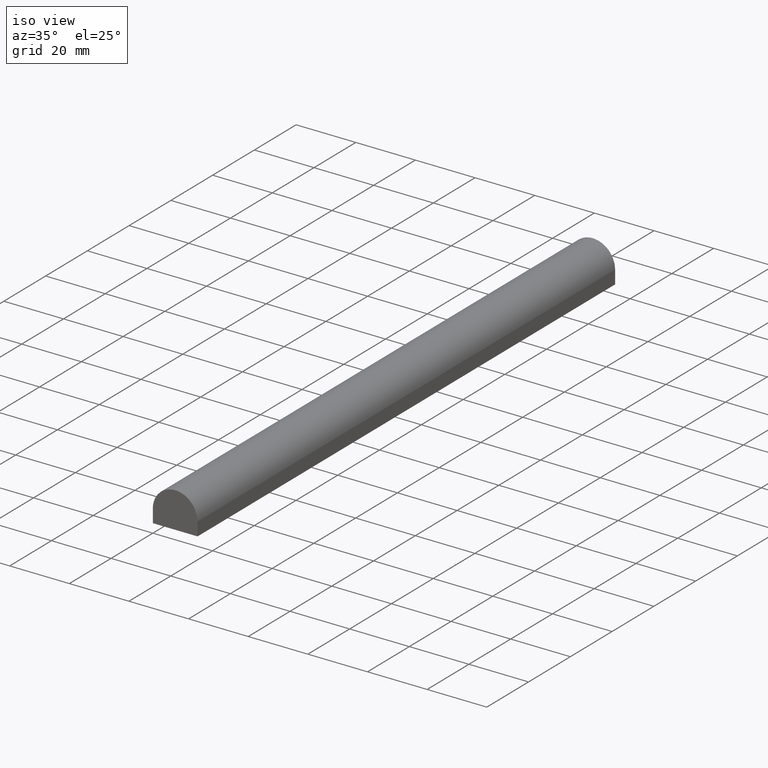
[diagram: clean part render]
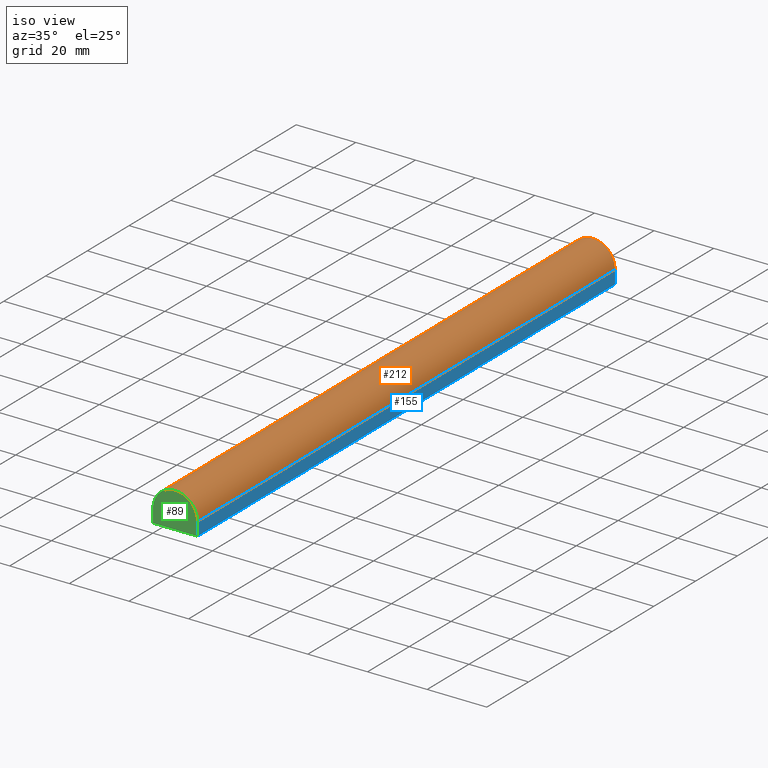
[diagram: same view with three faces highlighted in distinct colors, each labeled with its STEP entity id]
A machine part, iso view with three faces highlighted in distinct colors.
Their STEP definitions:

[orange] entity #212 — the highlighted face is a freeform B-spline surface patch.
#49=CARTESIAN_POINT('',(15.0,0.0,4.500000000000000));
#50=VERTEX_POINT('',#49);
#51=CARTESIAN_POINT('',(0.0,0.0,4.500000000000000));
#52=VERTEX_POINT('',#51);
#53=CARTESIAN_POINT('',(15.0,0.0,4.500000000000000));
#54=CARTESIAN_POINT('',(14.999999999999996,0.0,12.0));
#55=CARTESIAN_POINT('',(7.500000000000000,0.0,12.0));
#56=CARTESIAN_POINT('',(0.0,0.0,12.0));
#57=CARTESIAN_POINT('',(0.0,0.0,4.500000000000000));
#65=(BOUNDED_CURVE()B_SPLINE_CURVE(2,(#53,#54,#55,#56,#57),.UNSPECIFIED.,.F.,.U.)B_SPLINE_CURVE_WITH_KNOTS((3,2,3),(0.0,0.500000000000000,1.0),.UNSPECIFIED.)CURVE()GEOMETRIC_REPRESENTATION_ITEM()RATIONAL_B_SPLINE_CURVE((1.0,0.707106781186547,1.0,0.707106781186547,1.0))REPRESENTATION_ITEM(''));
#66=EDGE_CURVE('',#50,#52,#65,.T.);
#95=CARTESIAN_POINT('',(15.0,200.0,4.500000000000000));
#96=VERTEX_POINT('',#95);
#97=CARTESIAN_POINT('',(0.0,200.0,4.500000000000000));
#98=VERTEX_POINT('',#97);
#99=CARTESIAN_POINT('',(15.0,200.0,4.500000000000000));
#100=CARTESIAN_POINT('',(14.999999999999996,200.000000000000030,12.0));
#101=CARTESIAN_POINT('',(7.500000000000000,200.0,12.0));
#102=CARTESIAN_POINT('',(0.0,200.000000000000030,12.0));
#103=CARTESIAN_POINT('',(0.0,200.0,4.500000000000000));
#111=(BOUNDED_CURVE()B_SPLINE_CURVE(2,(#99,#100,#101,#102,#103),.UNSPECIFIED.,.F.,.U.)B_SPLINE_CURVE_WITH_KNOTS((3,2,3),(0.0,0.500000000000000,1.0),.UNSPECIFIED.)CURVE()GEOMETRIC_REPRESENTATION_ITEM()RATIONAL_B_SPLINE_CURVE((1.0,0.707106781186547,1.0,0.707106781186547,1.0))REPRESENTATION_ITEM(''));
#112=EDGE_CURVE('',#96,#98,#111,.T.);
#148=CARTESIAN_POINT('',(15.0,200.0,4.500000000000000));
#149=CARTESIAN_POINT('',(15.0,0.0,4.500000000000000));
#150=QUASI_UNIFORM_CURVE('',1,(#148,#149),.UNSPECIFIED.,.F.,.U.);
#151=EDGE_CURVE('',#96,#50,#150,.T.);
#178=CARTESIAN_POINT('',(0.0,200.0,4.500000000000000));
#179=CARTESIAN_POINT('',(0.0,0.0,4.500000000000000));
#180=QUASI_UNIFORM_CURVE('',1,(#178,#179),.UNSPECIFIED.,.F.,.U.);
#181=EDGE_CURVE('',#98,#52,#180,.T.);
#188=CARTESIAN_POINT('',(0.002570062683323,205.0,4.303672887690941));
#189=CARTESIAN_POINT('',(0.002570062683323,-5.125000000000000,4.303672887690941));
#190=CARTESIAN_POINT('',(-0.204315546321767,205.000000000000030,12.204315546321748));
#191=CARTESIAN_POINT('',(-0.204315546321767,-5.124999999999999,12.204315546321748));
#192=CARTESIAN_POINT('',(7.696327112309039,205.0,11.997429937316680));
#193=CARTESIAN_POINT('',(7.696327112309039,-5.125000000000000,11.997429937316680));
#194=CARTESIAN_POINT('',(15.596969770939838,205.000000000000030,11.790544328311608));
#195=CARTESIAN_POINT('',(15.596969770939838,-5.124999999999999,11.790544328311608));
#196=CARTESIAN_POINT('',(14.976880002998460,205.0,3.911556782041173));
#197=CARTESIAN_POINT('',(14.976880002998460,-5.125000000000000,3.911556782041173));
#205=(BOUNDED_SURFACE()B_SPLINE_SURFACE(1,2,((#188,#190,#192,#194,#196),(#189,#191,#193,#195,#197)),.UNSPECIFIED.,.F.,.F.,.U.)B_SPLINE_SURFACE_WITH_KNOTS((2,2),(3,2,3),(0.0,210.125000000000110),(0.0,12.889017179005080,25.778034358010160),.UNSPECIFIED.)GEOMETRIC_REPRESENTATION_ITEM()RATIONAL_B_SPLINE_SURFACE(((1.0,0.688354575693754,1.0,0.688354575693754,1.0),(1.0,0.688354575693754,1.0,0.688354575693754,1.0)))REPRESENTATION_ITEM('')SURFACE());
#206=ORIENTED_EDGE('',*,*,#66,.F.);
#207=ORIENTED_EDGE('',*,*,#151,.F.);
#208=ORIENTED_EDGE('',*,*,#112,.T.);
#209=ORIENTED_EDGE('',*,*,#181,.T.);
#210=EDGE_LOOP('',(#206,#207,#208,#209));
#211=FACE_OUTER_BOUND('',#210,.T.);
#212=ADVANCED_FACE('',(#211),#205,.T.);

[blue] entity #155 — the highlighted face is a freeform B-spline surface patch.
#49=CARTESIAN_POINT('',(15.0,0.0,4.500000000000000));
#50=VERTEX_POINT('',#49);
#75=CARTESIAN_POINT('',(15.0,0.0,0.0));
#76=VERTEX_POINT('',#75);
#82=CARTESIAN_POINT('',(15.0,0.0,0.0));
#83=CARTESIAN_POINT('',(15.0,0.0,4.500000000000000));
#84=QUASI_UNIFORM_CURVE('',1,(#82,#83),.UNSPECIFIED.,.F.,.U.);
#85=EDGE_CURVE('',#76,#50,#84,.T.);
#95=CARTESIAN_POINT('',(15.0,200.0,4.500000000000000));
#96=VERTEX_POINT('',#95);
#114=CARTESIAN_POINT('',(15.0,200.0,0.0));
#115=VERTEX_POINT('',#114);
#116=CARTESIAN_POINT('',(15.0,200.0,0.0));
#117=CARTESIAN_POINT('',(15.0,200.0,4.500000000000000));
#118=QUASI_UNIFORM_CURVE('',1,(#116,#117),.UNSPECIFIED.,.F.,.U.);
#119=EDGE_CURVE('',#115,#96,#118,.T.);
#136=CARTESIAN_POINT('',(15.0,-9.989999612361194,4.724774991278127));
#137=CARTESIAN_POINT('',(15.0,-9.989999612361194,-0.224775111977533));
#138=CARTESIAN_POINT('',(15.0,209.990004976779200,4.724774991278127));
#139=CARTESIAN_POINT('',(15.0,209.990004976779200,-0.224775111977533));
#140=B_SPLINE_SURFACE_WITH_KNOTS('',1,1,((#136,#138),(#137,#139)),.UNSPECIFIED.,.F.,.F.,.U.,(2,2),(2,2),(0.0,4.949550103255660),(0.0,219.980004589140410),.UNSPECIFIED.);
#141=ORIENTED_EDGE('',*,*,#85,.F.);
#142=CARTESIAN_POINT('',(15.0,200.0,0.0));
#143=CARTESIAN_POINT('',(15.0,0.0,0.0));
#144=QUASI_UNIFORM_CURVE('',1,(#142,#143),.UNSPECIFIED.,.F.,.U.);
#145=EDGE_CURVE('',#115,#76,#144,.T.);
#146=ORIENTED_EDGE('',*,*,#145,.F.);
#147=ORIENTED_EDGE('',*,*,#119,.T.);
#148=CARTESIAN_POINT('',(15.0,200.0,4.500000000000000));
#149=CARTESIAN_POINT('',(15.0,0.0,4.500000000000000));
#150=QUASI_UNIFORM_CURVE('',1,(#148,#149),.UNSPECIFIED.,.F.,.U.);
#151=EDGE_CURVE('',#96,#50,#150,.T.);
#152=ORIENTED_EDGE('',*,*,#151,.T.);
#153=EDGE_LOOP('',(#141,#146,#147,#152));
#154=FACE_OUTER_BOUND('',#153,.T.);
#155=ADVANCED_FACE('',(#154),#140,.T.);

[green] entity #89 — the highlighted face is a freeform B-spline surface patch.
#44=CARTESIAN_POINT('',(-0.749249970927090,0.0,12.599399976741250));
#45=CARTESIAN_POINT('',(15.749250373258439,0.0,12.599399976741250));
#46=CARTESIAN_POINT('',(-0.749249970927090,0.0,-0.599400298606734));
#47=CARTESIAN_POINT('',(15.749250373258439,0.0,-0.599400298606734));
#48=B_SPLINE_SURFACE_WITH_KNOTS('',1,1,((#44,#46),(#45,#47)),.UNSPECIFIED.,.F.,.F.,.U.,(2,2),(2,2),(0.0,16.498500344185530),(0.0,13.198800275347990),.UNSPECIFIED.);
#49=CARTESIAN_POINT('',(15.0,0.0,4.500000000000000));
#50=VERTEX_POINT('',#49);
#51=CARTESIAN_POINT('',(0.0,0.0,4.500000000000000));
#52=VERTEX_POINT('',#51);
#53=CARTESIAN_POINT('',(15.0,0.0,4.500000000000000));
#54=CARTESIAN_POINT('',(14.999999999999996,0.0,12.0));
#55=CARTESIAN_POINT('',(7.500000000000000,0.0,12.0));
#56=CARTESIAN_POINT('',(0.0,0.0,12.0));
#57=CARTESIAN_POINT('',(0.0,0.0,4.500000000000000));
#65=(BOUNDED_CURVE()B_SPLINE_CURVE(2,(#53,#54,#55,#56,#57),.UNSPECIFIED.,.F.,.U.)B_SPLINE_CURVE_WITH_KNOTS((3,2,3),(0.0,0.500000000000000,1.0),.UNSPECIFIED.)CURVE()GEOMETRIC_REPRESENTATION_ITEM()RATIONAL_B_SPLINE_CURVE((1.0,0.707106781186547,1.0,0.707106781186547,1.0))REPRESENTATION_ITEM(''));
#66=EDGE_CURVE('',#50,#52,#65,.T.);
#67=ORIENTED_EDGE('',*,*,#66,.T.);
#68=CARTESIAN_POINT('',(0.0,0.0,0.0));
#69=VERTEX_POINT('',#68);
#70=CARTESIAN_POINT('',(0.0,0.0,4.500000000000000));
#71=CARTESIAN_POINT('',(0.0,0.0,0.0));
#72=QUASI_UNIFORM_CURVE('',1,(#70,#71),.UNSPECIFIED.,.F.,.U.);
#73=EDGE_CURVE('',#52,#69,#72,.T.);
#74=ORIENTED_EDGE('',*,*,#73,.T.);
#75=CARTESIAN_POINT('',(15.0,0.0,0.0));
#76=VERTEX_POINT('',#75);
#77=CARTESIAN_POINT('',(0.0,0.0,0.0));
#78=CARTESIAN_POINT('',(15.0,0.0,0.0));
#79=QUASI_UNIFORM_CURVE('',1,(#77,#78),.UNSPECIFIED.,.F.,.U.);
#80=EDGE_CURVE('',#69,#76,#79,.T.);
#81=ORIENTED_EDGE('',*,*,#80,.T.);
#82=CARTESIAN_POINT('',(15.0,0.0,0.0));
#83=CARTESIAN_POINT('',(15.0,0.0,4.500000000000000));
#84=QUASI_UNIFORM_CURVE('',1,(#82,#83),.UNSPECIFIED.,.F.,.U.);
#85=EDGE_CURVE('',#76,#50,#84,.T.);
#86=ORIENTED_EDGE('',*,*,#85,.T.);
#87=EDGE_LOOP('',(#67,#74,#81,#86));
#88=FACE_OUTER_BOUND('',#87,.T.);
#89=ADVANCED_FACE('',(#88),#48,.F.);